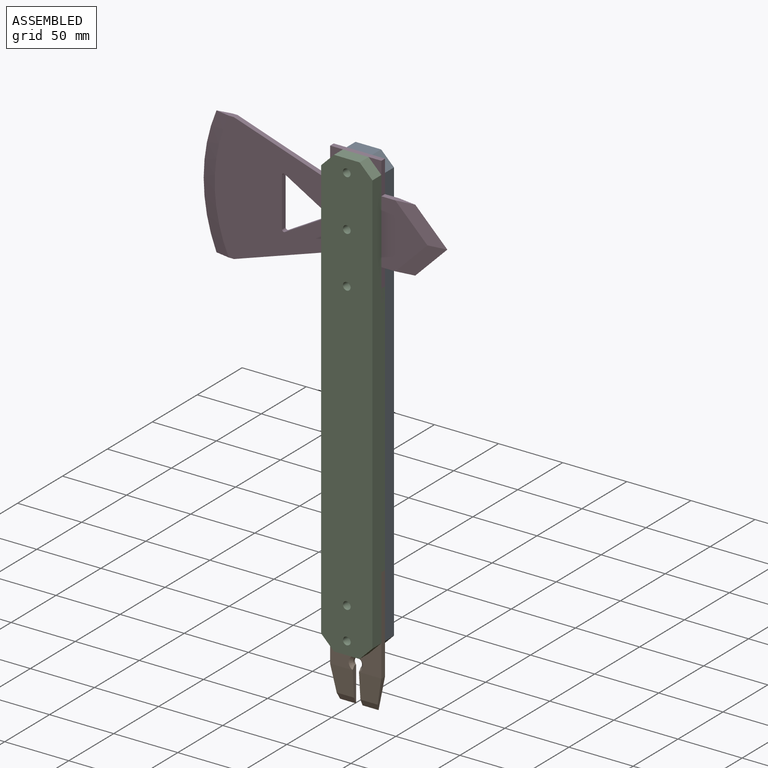
[diagram: assembled view]
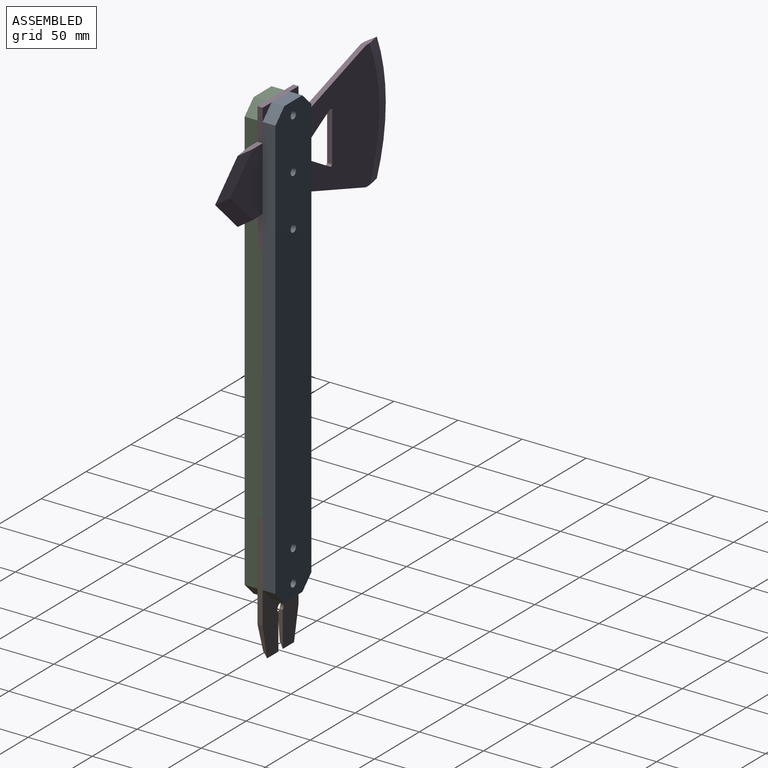
[diagram: assembled view, second angle]
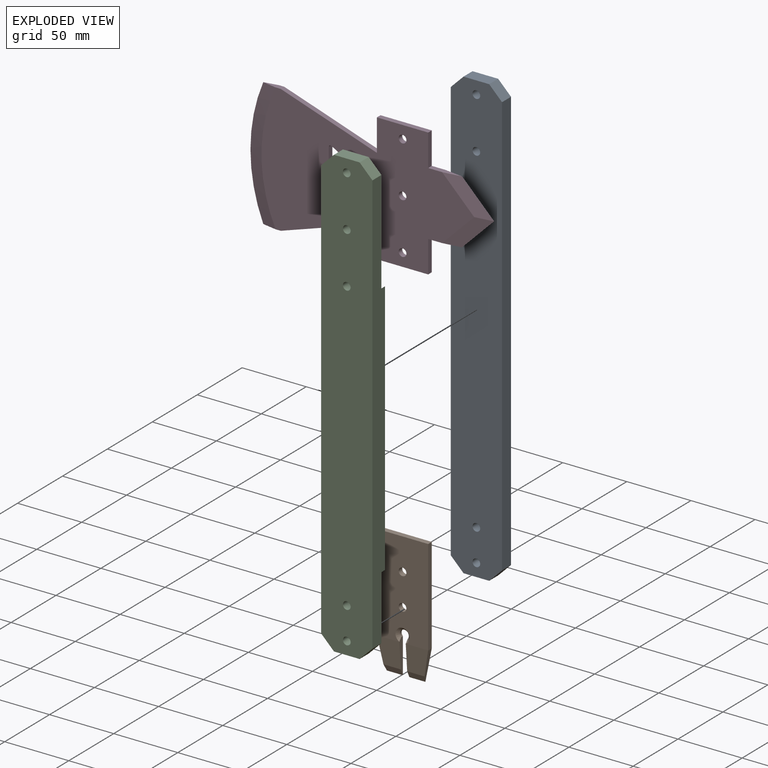
[diagram: exploded view]
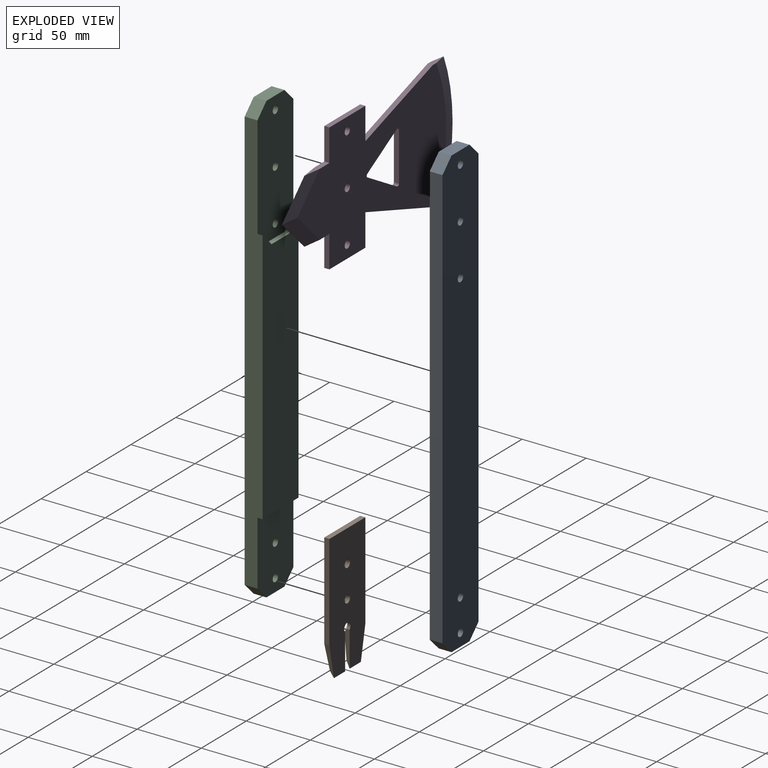
[diagram: exploded view, second angle]
ASSEMBLY  parts=4 mates=3
PART A: 15 faces, bbox 40x10x350 mm
  f0: plane 10x10mm, normal (-0.71,0,0.71), area 141.4mm2, adj f1,f7,f13,f14
  f1: plane 330x10mm, normal (-1,0,0), area 3300mm2, adj f0,f2,f13,f14
  f2: plane 10x10mm, normal (-0.71,0,-0.71), area 141.4mm2, adj f1,f3,f13,f14
  f3: plane 20x10mm, normal (0,0,-1), area 200mm2, adj f2,f4,f13,f14
  f4: plane 10x10mm, normal (0.71,0,-0.71), area 141.4mm2, adj f3,f5,f13,f14
  f5: plane 330x10mm, normal (1,0,0), area 3300mm2, adj f4,f6,f13,f14
  f6: plane 10x10mm, normal (0.71,0,0.71), area 141.4mm2, adj f5,f7,f13,f14
  f7: plane 20x10mm, normal (0,0,1), area 200mm2, adj f0,f6,f13,f14
  f8: cylinder r=3mm len=10mm, axis (0,1,0), area 188.5mm2, adj f13,f14
  f9: cylinder r=3mm len=10mm, axis (0,1,0), area 188.5mm2, adj f13,f14
  f10: cylinder r=3mm len=10mm, axis (0,1,0), area 188.5mm2, adj f13,f14
  f11: cylinder r=3mm len=10mm, axis (0,1,0), area 188.5mm2, adj f13,f14
  f12: cylinder r=3mm len=10mm, axis (0,1,0), area 188.5mm2, adj f13,f14
  f13: plane 350x40mm, normal (0,-1,0), area 13658.6mm2, adj f0,f1,f2,f3,f4,f5,f6,f7
  f14: plane 350x40mm, normal (0,1,0), area 13658.6mm2, adj f0,f1,f2,f3,f4,f5,f6,f7
PART B: 17 faces, bbox 40x4x100 mm
  f0: cylinder r=3.5mm len=7mm, axis (0,1,0), area 32.8mm2, adj f1,f8,f11,f16
  f1: plane 27.55x4mm, normal (-1,0,0), area 77.7mm2, adj f0,f10,f11,f12,f14,f16
  f2: plane 25x5mm, normal (0.98,0,-0.2), area 71.4mm2, adj f3,f11,f12,f14
  f3: plane 75x4mm, normal (1,0,0), area 300mm2, adj f2,f4,f10,f11
  f4: plane 40x4mm, normal (0,0,1), area 160mm2, adj f3,f5,f10,f11
  f5: plane 75x4mm, normal (-1,0,0), area 300mm2, adj f4,f6,f10,f11
  f6: plane 25x5mm, normal (-0.98,0,-0.2), area 71.4mm2, adj f5,f11,f13,f15
  f7: cylinder r=3mm len=6mm, axis (0,1,0), area 75.4mm2, adj f10,f11
  f8: plane 27.55x4mm, normal (1,0,0), area 77.7mm2, adj f0,f10,f11,f13,f15,f16
  f9: cylinder r=3mm len=6mm, axis (0,1,0), area 75.4mm2, adj f10,f11
  f10: plane 75x40mm, normal (0,-1,0), area 2849.9mm2, adj f1,f3,f4,f5,f7,f8,f9,f12
  f11: plane 100x40mm, normal (0,1,0), area 3645.8mm2, adj f0,f1,f2,f3,f4,f5,f6,f7
  f12: plane 20.02x17.5mm, normal (0,-1,-0.08), area 311.2mm2, adj f1,f2,f10,f14
  f13: plane 20.02x17.5mm, normal (0,-1,-0.08), area 311.2mm2, adj f6,f8,f10,f15
  f14: plane 13.5x4.98mm, normal (0,-0.9,-0.43), area 71.9mm2, adj f1,f2,f11,f12
  f15: plane 13.5x4.98mm, normal (0,-0.9,-0.43), area 71.9mm2, adj f6,f8,f11,f13
  f16: cone r=3.5mm half-angle=45deg, axis (0,-1,0), area 64.9mm2, adj f0,f1,f8,f10
PART C: 21 faces, bbox 40x14x350 mm
  f0: plane 60x40mm, normal (0,1,0), area 2243.5mm2, adj f2,f3,f4,f5,f6,f10,f13,f17
  f1: plane 10x10mm, normal (-0.71,0,0.71), area 141.4mm2, adj f2,f12,f14,f15
  f2: plane 330x14mm, normal (-1,0,0), area 4100mm2, adj f0,f1,f3,f14,f15,f16,f17,f20
  f3: plane 10x10mm, normal (-0.71,0,-0.71), area 141.4mm2, adj f0,f2,f4,f14
  f4: plane 20x10mm, normal (0,0,-1), area 200mm2, adj f0,f3,f5,f14
  f5: plane 10x10mm, normal (0.71,0,-0.71), area 141.4mm2, adj f0,f4,f6,f14
  f6: plane 330x14mm, normal (1,0,0), area 4100mm2, adj f0,f5,f7,f14,f15,f17,f18,f20
  f7: plane 10x10mm, normal (0.71,0,0.71), area 141.4mm2, adj f6,f12,f14,f15
  f8: cylinder r=3mm len=10mm, axis (0,1,0), area 188.5mm2, adj f14,f15
  f9: cylinder r=3mm len=10mm, axis (0,1,0), area 188.5mm2, adj f14,f15
  f10: cylinder r=3mm len=10mm, axis (0,1,0), area 188.5mm2, adj f0,f14
  f11: cylinder r=3mm len=10mm, axis (0,1,0), area 188.5mm2, adj f14,f15
  f12: plane 20x10mm, normal (0,0,1), area 200mm2, adj f1,f7,f14,f15
  f13: cylinder r=3mm len=10mm, axis (0,1,0), area 188.5mm2, adj f0,f14
  f14: plane 350x40mm, normal (0,-1,0), area 13658.6mm2, adj f1,f2,f3,f4,f5,f6,f7,f8
  f15: plane 100x40mm, normal (0,1,0), area 3715.2mm2, adj f1,f2,f6,f7,f8,f9,f11,f12
  f16: plane 10x10mm, normal (0.71,0,0.71), area 56.6mm2, adj f2,f15,f19,f20
  f17: plane 40x4mm, normal (0,0,-1), area 160mm2, adj f0,f2,f6,f20
  f18: plane 10x10mm, normal (-0.71,0,0.71), area 56.6mm2, adj f6,f15,f19,f20
  f19: plane 20x4mm, normal (0,0,1), area 80mm2, adj f15,f16,f18,f20
  f20: plane 200x40mm, normal (0,1,0), area 7700mm2, adj f2,f6,f16,f17,f18,f19
PART D: 31 faces, bbox 190.2x4.2x108.5 mm
  f0: plane 33x19.05mm, normal (-0.5,0,0.87), area 152.4mm2, adj f1,f22,f23,f24
  f1: cylinder r=1.5mm len=4mm, axis (0,1,0), area 12.6mm2, adj f0,f2,f23,f24
  f2: plane 38.11x4mm, normal (1,0,0), area 152.4mm2, adj f1,f3,f23,f24
  f3: cylinder r=1.5mm len=4mm, axis (0,1,0), area 15.9mm2, adj f2,f4,f23,f24
  f4: cylinder r=22mm len=4mm, axis (0,1,0), area 1.1mm2, adj f3,f5,f23,f24
  f5: plane 31.36x18.1mm, normal (-0.5,0,-0.87), area 144.8mm2, adj f4,f6,f23,f24
  f6: cylinder r=22mm len=4mm, axis (0,1,0), area 1.1mm2, adj f5,f22,f23,f24
  f7: plane 15.18x4.18mm, normal (0,0,-1), area 38.2mm2, adj f8,f23,f24,f25,f26
  f8: plane 75x25mm, normal (0.32,0,-0.95), area 316.2mm2, adj f7,f9,f23,f24
  f9: plane 25x4mm, normal (-1,0,0), area 100mm2, adj f8,f10,f23,f24
  f10: plane 40x4mm, normal (0,0,-1), area 160mm2, adj f9,f11,f23,f24
  f11: plane 25x4mm, normal (1,0,0), area 100mm2, adj f10,f12,f23,f24
  f12: plane 25x4mm, normal (0,0,-1), area 71.7mm2, adj f11,f23,f24,f28,f30
  f13: plane 25x4mm, normal (0,0,1), area 71.7mm2, adj f14,f23,f24,f27,f29
  f14: plane 25x4mm, normal (1,0,0), area 100mm2, adj f13,f15,f23,f24
  f15: plane 40x4mm, normal (0,0,1), area 160mm2, adj f14,f16,f23,f24
  f16: plane 25x4mm, normal (-1,0,0), area 100mm2, adj f15,f17,f23,f24
  f17: plane 75x25mm, normal (0.32,0,0.95), area 316.2mm2, adj f16,f21,f23,f24
  f18: cylinder r=3mm len=6mm, axis (0,1,0), area 75.4mm2, adj f23,f24
  f19: cylinder r=3mm len=6mm, axis (0,1,0), area 75.4mm2, adj f23,f24
  f20: cylinder r=3mm len=6mm, axis (0,1,0), area 75.4mm2, adj f23,f24
  f21: plane 15.18x4.18mm, normal (0,0,1), area 38.2mm2, adj f17,f23,f24,f25,f26
  f22: cylinder r=1.5mm len=4mm, axis (0,1,0), area 15.9mm2, adj f0,f6,f23,f24
  f23: plane 165.86x100mm, normal (0,-1,0), area 11044.1mm2, adj f0,f1,f2,f3,f4,f5,f6,f7
  f24: plane 165.86x100mm, normal (0,1,0), area 11044.1mm2, adj f0,f1,f2,f3,f4,f5,f6,f7
  f25: cone r=120mm half-angle=78.7deg, axis (0,1,0), area 1050.5mm2, adj f7,f21,f23,f26
  f26: cone r=130mm half-angle=78.7deg, axis (0,-1,0), area 1050.5mm2, adj f7,f21,f24,f25
  f27: plane 39.14x25mm, normal (0.14,-0.98,0.14), area 360.6mm2, adj f13,f23,f28,f29
  f28: plane 39.14x25mm, normal (0.14,-0.98,-0.14), area 360.6mm2, adj f12,f23,f27,f30
  f29: plane 39.14x25mm, normal (0.14,0.98,0.14), area 360.6mm2, adj f13,f24,f27,f30
  f30: plane 39.14x25mm, normal (0.14,0.98,-0.14), area 360.6mm2, adj f12,f24,f28,f29
PLACE A t=(-287.49,374.69,-190.19)mm
PLACE B t=(-275.74,362.69,-318.2)mm
PLACE C t=(-250.06,360.69,-215.73)mm fixed
PLACE D t=(-288.72,362.69,-44.22)mm fixed
MATE fastened C.f9 <-> D.f18  axis (0,1,0) through (-288.72,360.69,-38.6)mm
MATE fastened D.f18 <-> A.f8  axis (0,1,0) through (-288.72,364.69,-38.6)mm
MATE fastened C.f13 <-> B.f9  axis (0,1,0) through (-288.72,360.69,-303.6)mm
